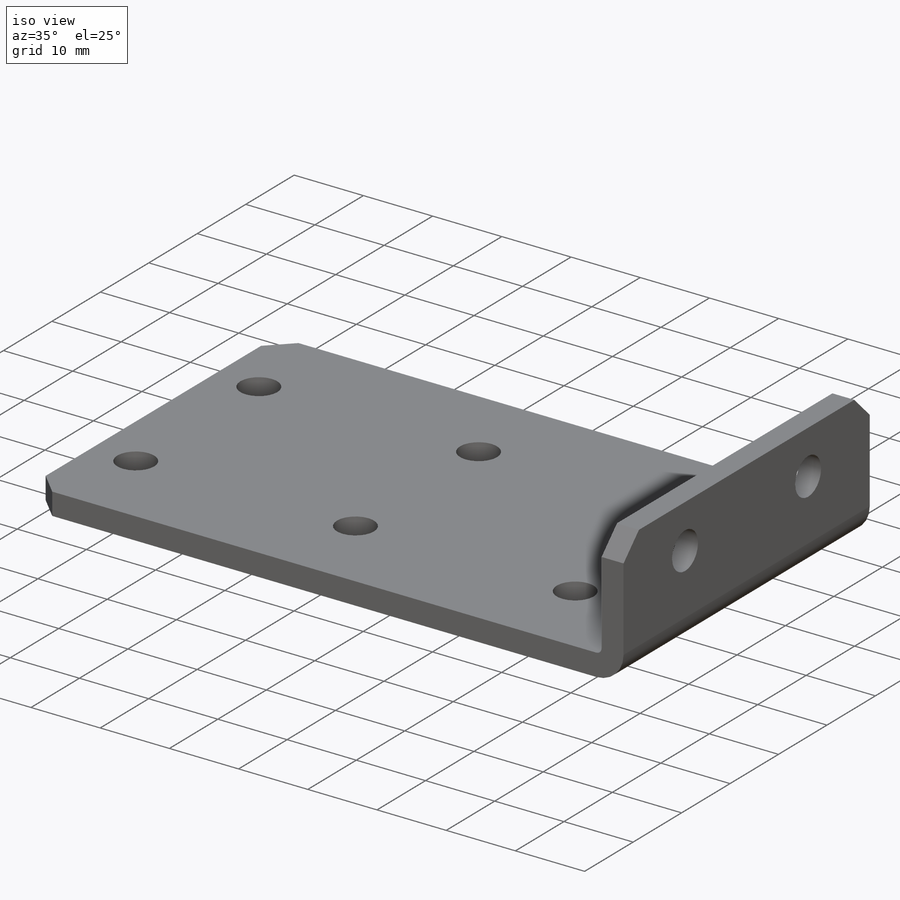
[diagram: iso view]
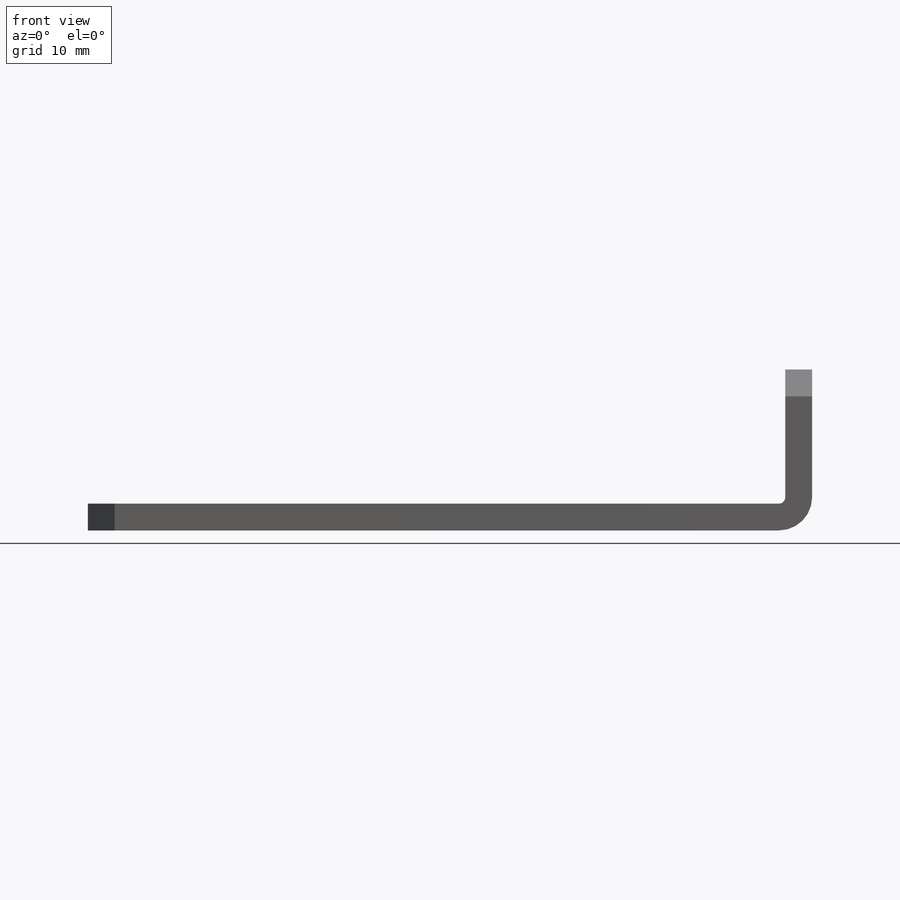
[diagram: front view]
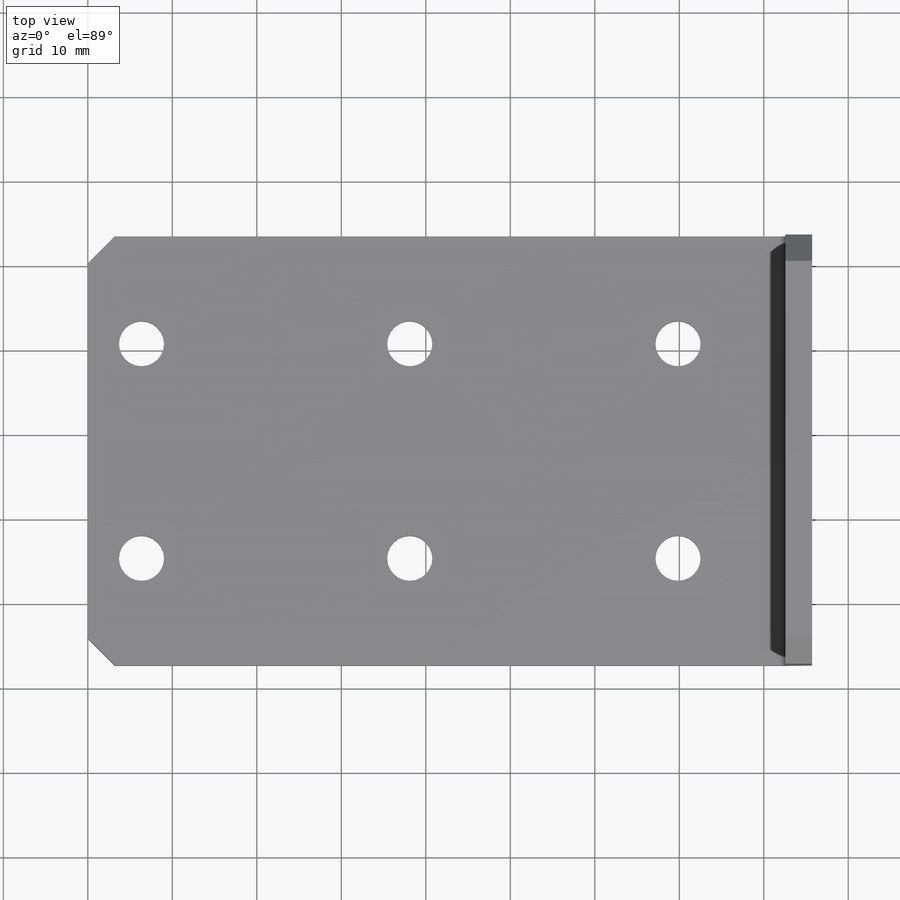
[diagram: top view]
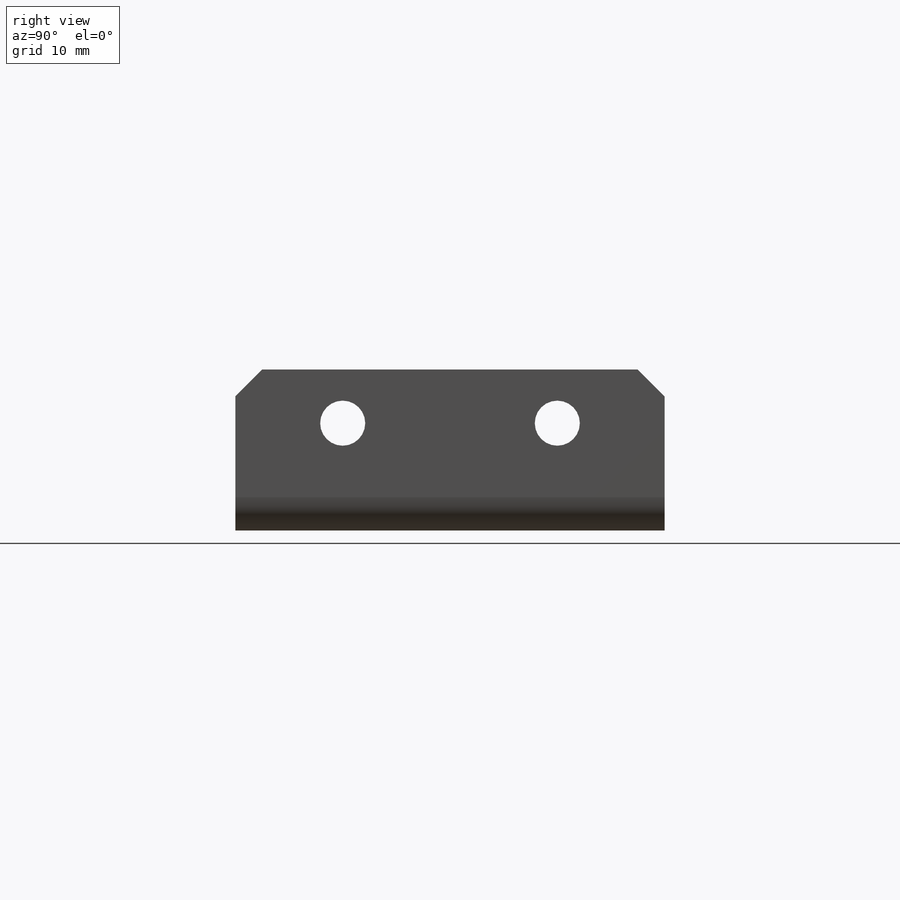
[diagram: right view]
SOLIDWORKS PART (.sldprt)
format: sldprt  version: not decoded by parser v0  size: 287,232 bytes
history: native  units: mm
features: sketch x6, cut_extrude x3, material x1, extrude x1, sheet_metal_op x1, chamfer x1 + 1 further entry (+13 scaffold rows collapsed; 1 parser-record rows omitted)
feature tree (28):
  scaffold x13  (default folders/planes/origin — collapsed)
  material  "5052-H32"
  sketch  "Sketch1"  dims[D1=63.5mm D2=81.788mm]
  extrude  "Boss-Extrude1"  Depth=3.175mm
  sheet_metal_op  "Sheet-Metal1"
  sketch  "Sketch5"  dims[c1.D1=0.762mm c1.D4=90.0deg c1.D5=1.0 c1.D8=1.5875mm c1.D9=1.5875mm c2.D1=0.762mm c2.D2=500.0mm c2.D3=0.0mm c2.D6=10.0mm c2.D7=19.05mm]
  sketch  "Sketch6"  dims[c1.D1=5.334mm c1.D2=5.334mm c1.D5=5.334mm c2.D2=6.35mm c2.D3=25.4mm c2.D4=63.5mm c2.D5=12.7mm]
  cut_extrude  "Cut-Extrude1"  [1 undecoded]
  sketch  "Sketch7"  dims[c1.D2=5.334mm c1.D1=6.35mm c1.D3=25.4mm c2.D1=12.7mm]
  cut_extrude  "Cut-Extrude2"  [1 undecoded]
  sketch  "Sketch8"  dims[D1=12.7mm]
  cut_extrude  "Cut-Extrude3"  [1 undecoded]
  chamfer  "Chamfer2"  Distance=3.175mm
  "Flat-Pattern1"
  sketch  "Bend-Lines1"
  parser-record x1  (decoder bookkeeping rows leaked as tree rows — omitted from the tree; the rows remain in map.json)
decode coverage: 7 of 12 modeling features carry decoded parameters; 1 rows unclassified (native names shown)
note: 3 parameter values undecoded
summary: no parameter record found for 3 features
note: suppression state not decoded; provenance and decode notes live in map.json
